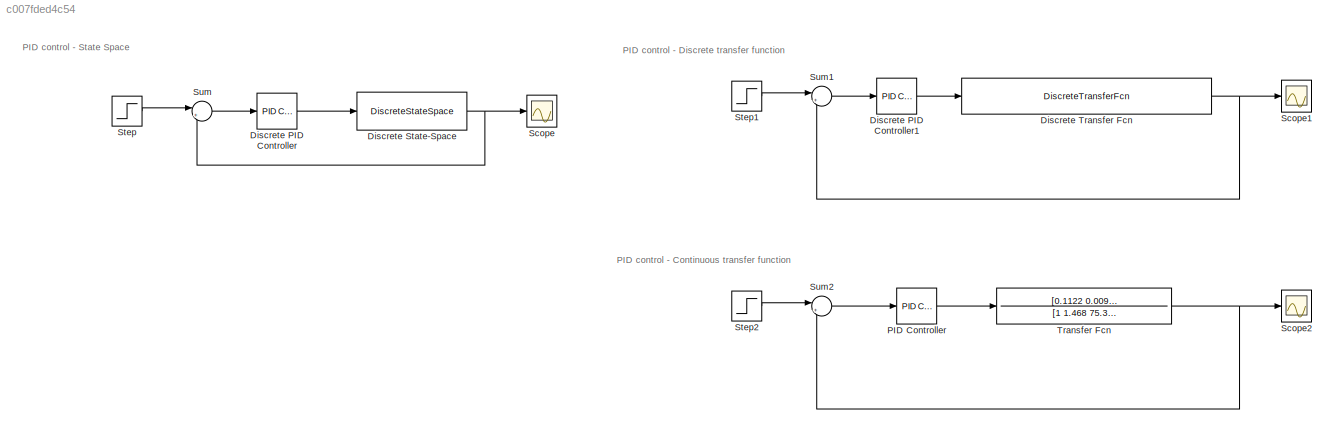
MODEL slx_c007fded4c54
KIND model
CONFIG AbsTol = auto
CONFIG EnableMultiTasking = off
CONFIG FixedStep = auto
CONFIG MaxStep = auto
CONFIG MinStep = auto
CONFIG RelTol = 1e-3
CONFIG SampleTimeConstraint = Unconstrained
CONFIG SolverName = VariableStepAuto
CONFIG StartTime = 0.0
CONFIG StopTime = 10
BLOCK [Reference] Discrete PID Controller  REF=slpidlib/PID Controller
  SourceBlock = slpidlib/PID Controller
  SourceType = PID 1dof
BLOCK [Reference] Discrete PID Controller1  REF=slpidlib/PID Controller
  Commented = on
  SourceBlock = slpidlib/PID Controller
  SourceType = PID 1dof
BLOCK [DiscreteStateSpace] Discrete State-Space
  A = [0.9974 -0.04261 -0.004239; 0.0122 0.9928 -0.01727; -0.006409 -0.0002552 -0.7093]
  B = [-0.00000003697; 0.00000032; -0.0000000476]
  C = [411.5 40.9 6.706]
  D = [0]
  SampleTime = 0.01
BLOCK [DiscreteTransferFcn] Discrete Transfer Fcn
  Commented = on
  Denominator = [1 -2.978 2.963 -0.9854]
  InputPortMap = u0
  Numerator = [0.000005579 -0.00000002099 -0.000005549]
  SampleTime = 0.01
BLOCK [Reference] PID Controller  REF=slpidlib/PID Controller
  Commented = on
  SourceBlock = slpidlib/PID Controller
  SourceType = PID 1dof
BLOCK [Scope] Scope
  Floating = off
  NumInputPorts = 1
  ScopeSpecificationString = Simulink.scopes.TimeScopeBlockCfg('CurrentConfiguration', extmgr.ConfigurationSet(extmgr.Configuration('Core','General UI',true),extmgr.Configuration('Core','Source UI',true),extmgr.Configuration('Sources','WiredSimulink',true),extmgr.Configuration('Visuals','Time Domain',true,'SerializedDisplays',{struct('MinYLimReal','-0.12499','MaxYLimReal','1.12487','YLabelReal','','MinYLimMag','0.00000','MaxY...<+1340ch>
BLOCK [Scope] Scope1
  Commented = on
  Floating = off
  NumInputPorts = 1
  ScopeSpecificationString = Simulink.scopes.TimeScopeBlockCfg('CurrentConfiguration', extmgr.ConfigurationSet(extmgr.Configuration('Core','General UI',true),extmgr.Configuration('Core','Source UI',true),extmgr.Configuration('Sources','WiredSimulink',true,'DataLoggingVariableName','ScopeData1'),extmgr.Configuration('Visuals','Time Domain',true,'SerializedDisplays',{struct('MinYLimReal','-0.21695','MaxYLimReal','1.95254','YLab...<+1453ch>
BLOCK [Scope] Scope2
  Commented = on
  Floating = off
  NumInputPorts = 1
  ScopeSpecificationString = Simulink.scopes.TimeScopeBlockCfg('CurrentConfiguration', extmgr.ConfigurationSet(extmgr.Configuration('Core','General UI',true),extmgr.Configuration('Core','Source UI',true),extmgr.Configuration('Sources','WiredSimulink',true,'DataLoggingVariableName','ScopeData2'),extmgr.Configuration('Visuals','Time Domain',true,'SerializedDisplays',{struct('MinYLimReal','-0.21695','MaxYLimReal','1.95254','YLab...<+1444ch>
BLOCK [Step] Step
  SampleTime = 0.01
  Time = 5
BLOCK [Step] Step1
  Commented = on
  SampleTime = 0.01
  Time = 5
BLOCK [Step] Step2
  Commented = on
  SampleTime = 0.01
  Time = 5
BLOCK [Sum] Sum
  Inputs = |+-
BLOCK [Sum] Sum1
  Commented = on
  Inputs = |+-
BLOCK [Sum] Sum2
  Commented = on
  Inputs = |+-
BLOCK [TransferFcn] Transfer Fcn
  Commented = on
  Denominator = [1 1.468 75.36 61.8]
  Numerator = [0.1122 0.009427]
ANNOTATION (root): PID control - Continuous transfer function
ANNOTATION (root): PID control - Discrete transfer function
ANNOTATION (root): PID control - State Space
LINE Discrete PID Controller1:1 -> Discrete Transfer Fcn:1
LINE Discrete PID Controller:1 -> Discrete State-Space:1
NET Discrete State-Space:1 -> Scope:1, Sum:2
NET Discrete Transfer Fcn:1 -> Scope1:1, Sum1:2
LINE PID Controller:1 -> Transfer Fcn:1
LINE Step1:1 -> Sum1:1
LINE Step2:1 -> Sum2:1
LINE Step:1 -> Sum:1
LINE Sum1:1 -> Discrete PID Controller1:1
LINE Sum2:1 -> PID Controller:1
LINE Sum:1 -> Discrete PID Controller:1
NET Transfer Fcn:1 -> Scope2:1, Sum2:2
note: NET lines group one-source signal fan-out (src -> all destinations, sorted); 1:1 wires keep LINE
